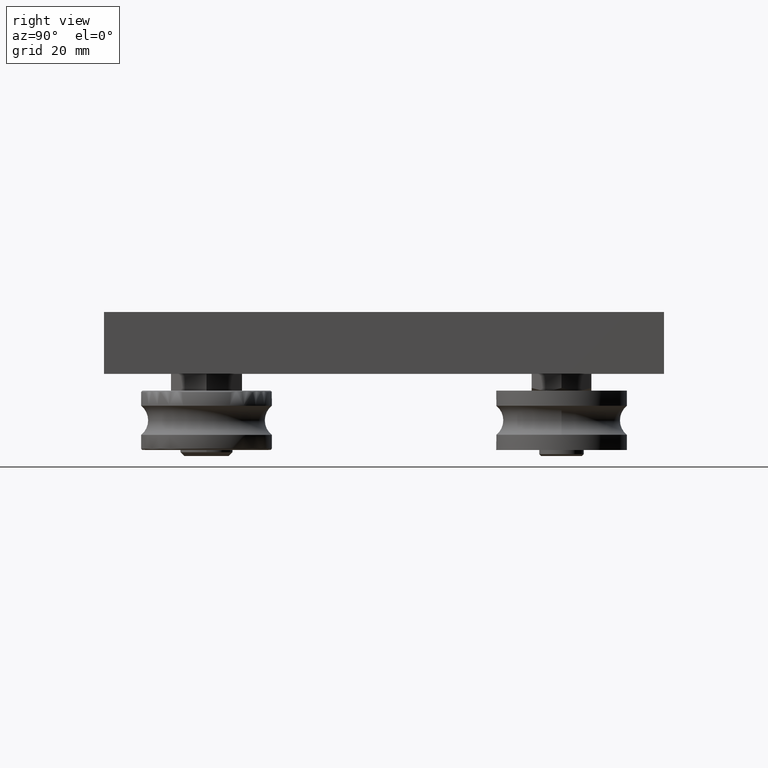
[diagram: clean part render]
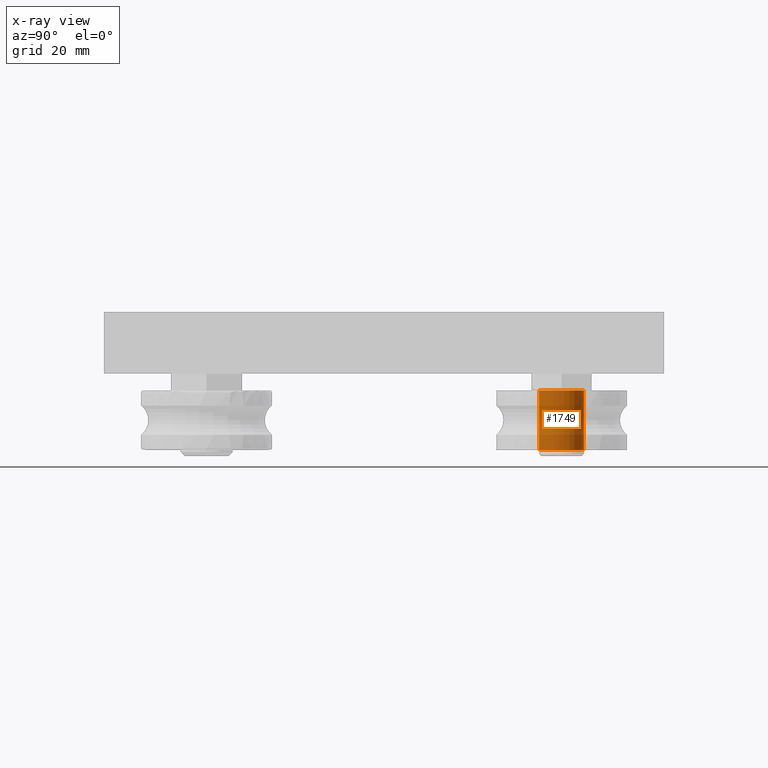
[diagram: x-ray — body ghosted, one internal face saturated and labeled with its STEP entity id]
A machine part, right view, then the same camera in x-ray: the body is ghosted and one INTERNAL B-rep face — a face not visible from any outside direction — is saturated and labeled: STEP entity #1749.
In plain terms, the highlighted cylindrical surface (bore or boss wall) has radius 6 mm, axis along (0, 0, 1).
Its self-contained STEP definition (entity closure, byte-faithful):
#287=FACE_OUTER_BOUND('',#427,.T.);
#427=EDGE_LOOP('',(#1351,#1352,#1353,#1354));
#547=LINE('',#2925,#644);
#644=VECTOR('',#2371,6.);
#736=CIRCLE('',#1986,6.);
#751=CIRCLE('',#2013,6.);
#860=VERTEX_POINT('',#2875);
#874=VERTEX_POINT('',#2922);
#1024=EDGE_CURVE('',#860,#860,#736,.T.);
#1045=EDGE_CURVE('',#874,#874,#751,.T.);
#1046=EDGE_CURVE('',#874,#860,#547,.T.);
#1351=ORIENTED_EDGE('',*,*,#1045,.T.);
#1352=ORIENTED_EDGE('',*,*,#1046,.T.);
#1353=ORIENTED_EDGE('',*,*,#1024,.F.);
#1354=ORIENTED_EDGE('',*,*,#1046,.F.);
#1701=CYLINDRICAL_SURFACE('',#2014,6.);
#1749=ADVANCED_FACE('',(#287),#1701,.F.);
#1986=AXIS2_PLACEMENT_3D('',#2876,#2307,#2308);
#2013=AXIS2_PLACEMENT_3D('',#2923,#2367,#2368);
#2014=AXIS2_PLACEMENT_3D('',#2924,#2369,#2370);
#2307=DIRECTION('center_axis',(1.,0.,0.));
#2308=DIRECTION('ref_axis',(0.,1.,0.));
#2367=DIRECTION('center_axis',(1.,0.,0.));
#2368=DIRECTION('ref_axis',(0.,1.,0.));
#2369=DIRECTION('center_axis',(1.,0.,0.));
#2370=DIRECTION('ref_axis',(0.,1.,0.));
#2371=DIRECTION('',(-1.,0.,0.));
#2875=CARTESIAN_POINT('',(-7.95,-6.,-7.34788079488412E-16));
#2876=CARTESIAN_POINT('Origin',(-7.95,0.,0.));
#2922=CARTESIAN_POINT('',(7.95,-6.,-7.34788079488412E-16));
#2923=CARTESIAN_POINT('Origin',(7.95,0.,0.));
#2924=CARTESIAN_POINT('Origin',(1.11022302462516E-15,0.,0.));
#2925=CARTESIAN_POINT('',(1.11022302462516E-15,-6.,-7.34788079488412E-16));